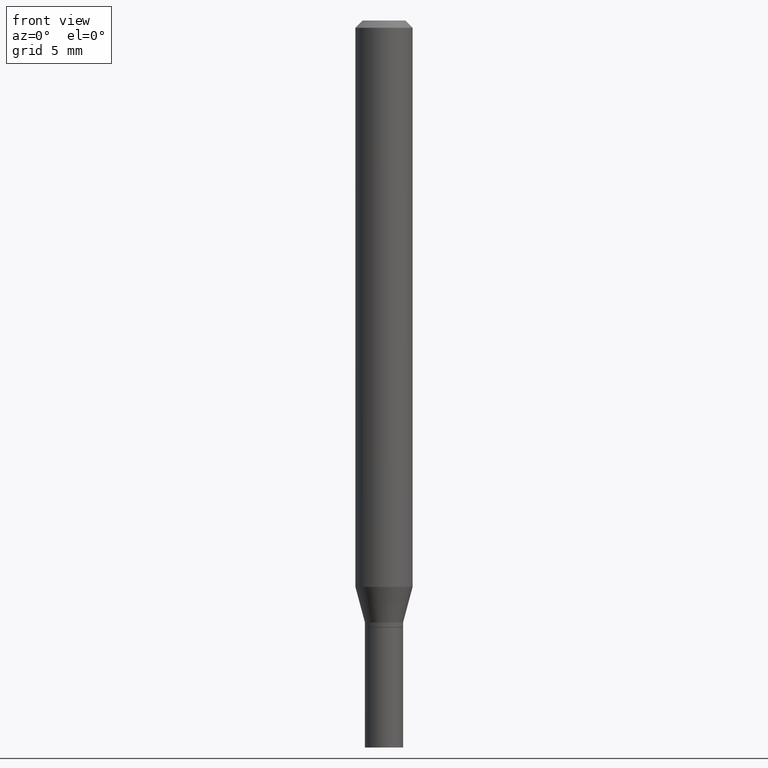
[diagram: clean part render]
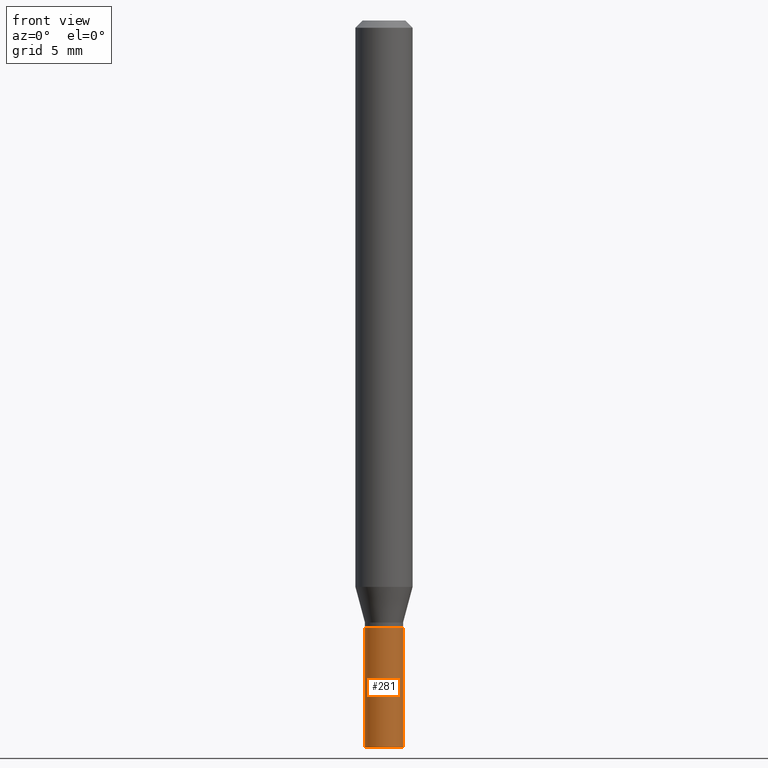
[diagram: same view with one face highlighted and labeled with its STEP entity id]
A machine part, front view. The second image highlights one B-rep face of the part: STEP entity #281.
In plain terms, the highlighted cylindrical surface (edge-blend (fillet) strip) has radius 0.9995 mm, axis along (-0, 0, 1).
Its self-contained STEP definition (entity closure, byte-faithful):
#6 = CIRCLE ( 'NONE', #300, 0.03935000000000000303 ) ;
#16 = DIRECTION ( 'NONE',  ( -2.445468806185136597E-29, 3.491481338843145583E-15, 1.000000000000000000 ) ) ;
#22 = CARTESIAN_POINT ( 'NONE',  ( 0.03935000000000000303, -5.512001589631673094E-15, -1.500000000000000222 ) ) ;
#46 = EDGE_CURVE ( 'NONE', #179, #148, #451, .T. ) ;
#64 = CARTESIAN_POINT ( 'NONE',  ( 3.668203209277704895E-29, -5.237222008264718177E-15, -1.500000000000000222 ) ) ;
#66 = FACE_OUTER_BOUND ( 'NONE', #139, .T. ) ;
#101 = EDGE_CURVE ( 'NONE', #135, #152, #296, .T. ) ;
#102 = CARTESIAN_POINT ( 'NONE',  ( 0.03935000000000000303, -2.747795813669546211E-16, 1.918775561275701074E-30 ) ) ;
#129 = EDGE_CURVE ( 'NONE', #148, #152, #6, .T. ) ;
#135 = VERTEX_POINT ( 'NONE', #22 ) ;
#136 = DIRECTION ( 'NONE',  ( -2.445468806185136597E-29, 3.491481338843145583E-15, 1.000000000000000000 ) ) ;
#138 = ORIENTED_EDGE ( 'NONE', *, *, #101, .T. ) ;
#139 = EDGE_LOOP ( 'NONE', ( #180, #285, #138, #356 ) ) ;
#144 = CARTESIAN_POINT ( 'NONE',  ( -0.03935000000000000303, 2.795985665215994447E-16, -1.935600958015305291E-30 ) ) ;
#148 = VERTEX_POINT ( 'NONE', #201 ) ;
#152 = VERTEX_POINT ( 'NONE', #350 ) ;
#163 = AXIS2_PLACEMENT_3D ( 'NONE', #64, #181, #219 ) ;
#175 = DIRECTION ( 'NONE',  ( 1.000000000000000000, -6.982962677686269077E-15, 0.000000000000000000 ) ) ;
#179 = VERTEX_POINT ( 'NONE', #458 ) ;
#180 = ORIENTED_EDGE ( 'NONE', *, *, #46, .F. ) ;
#181 = DIRECTION ( 'NONE',  ( -2.445468806185136597E-29, 3.491481338843145583E-15, 1.000000000000000000 ) ) ;
#188 = EDGE_CURVE ( 'NONE', #179, #135, #436, .T. ) ;
#194 = VECTOR ( 'NONE', #425, 39.37007874015748143 ) ;
#201 = CARTESIAN_POINT ( 'NONE',  ( -0.03935000000000000303, -4.524679755726570119E-15, -1.252000000000000224 ) ) ;
#219 = DIRECTION ( 'NONE',  ( 1.000000000000000000, -6.982962677686269077E-15, 0.000000000000000000 ) ) ;
#256 = DIRECTION ( 'NONE',  ( -2.445468806185136877E-29, 3.491481338843145188E-15, 1.000000000000000000 ) ) ;
#275 = AXIS2_PLACEMENT_3D ( 'NONE', #307, #136, #452 ) ;
#281 = ADVANCED_FACE ( 'NONE', ( #66 ), #364, .T. ) ;
#285 = ORIENTED_EDGE ( 'NONE', *, *, #188, .T. ) ;
#296 = LINE ( 'NONE', #102, #442 ) ;
#300 = AXIS2_PLACEMENT_3D ( 'NONE', #358, #16, #175 ) ;
#307 = CARTESIAN_POINT ( 'NONE',  ( 0.000000000000000000, 0.000000000000000000, 0.000000000000000000 ) ) ;
#350 = CARTESIAN_POINT ( 'NONE',  ( 0.03935000000000000303, -4.646114217598574191E-15, -1.252000000000000224 ) ) ;
#356 = ORIENTED_EDGE ( 'NONE', *, *, #129, .F. ) ;
#358 = CARTESIAN_POINT ( 'NONE',  ( 3.061726945343791391E-29, -4.371334636231619274E-15, -1.252000000000000224 ) ) ;
#364 = CYLINDRICAL_SURFACE ( 'NONE', #275, 0.03935000000000000303 ) ;
#425 = DIRECTION ( 'NONE',  ( -2.445468806185136877E-29, 3.491481338843145188E-15, 1.000000000000000000 ) ) ;
#436 = CIRCLE ( 'NONE', #163, 0.03935000000000000303 ) ;
#442 = VECTOR ( 'NONE', #256, 39.37007874015748143 ) ;
#451 = LINE ( 'NONE', #144, #194 ) ;
#452 = DIRECTION ( 'NONE',  ( 1.000000000000000000, -6.982962677686266711E-15, 4.876176775795936353E-29 ) ) ;
#458 = CARTESIAN_POINT ( 'NONE',  ( -0.03935000000000000303, -4.524679755726570119E-15, -1.500000000000000222 ) ) ;